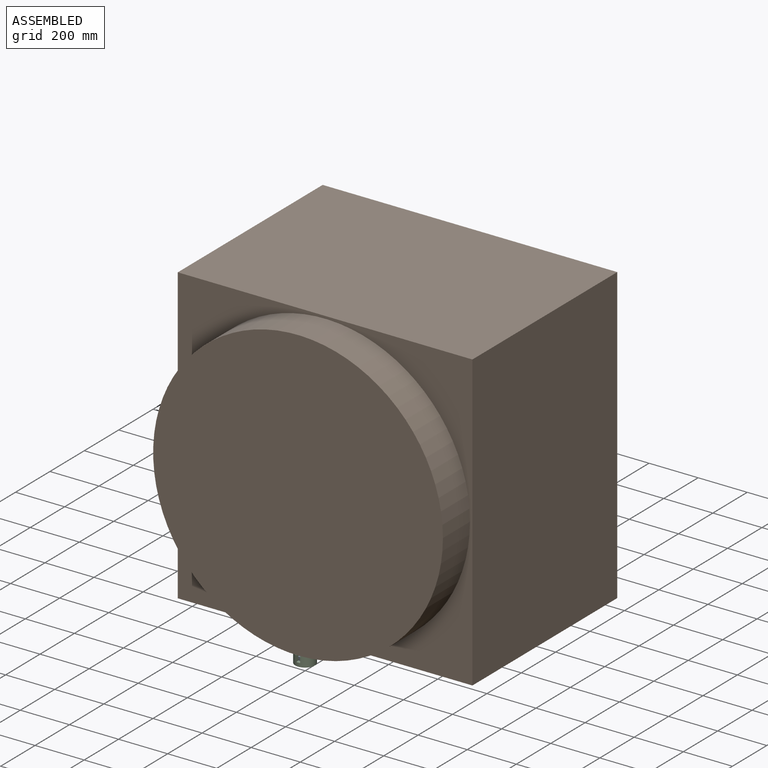
[diagram: assembled view]
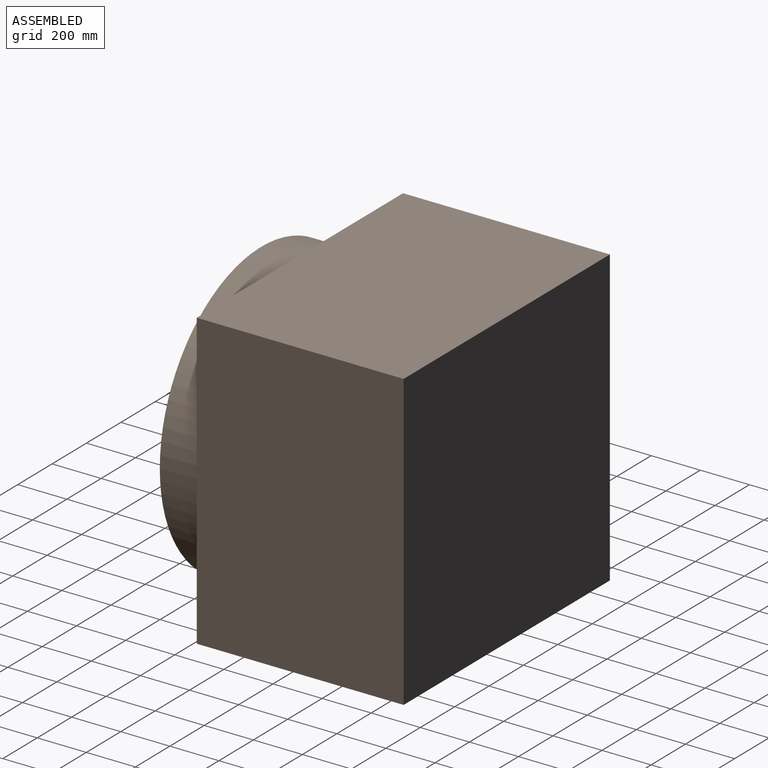
[diagram: assembled view, second angle]
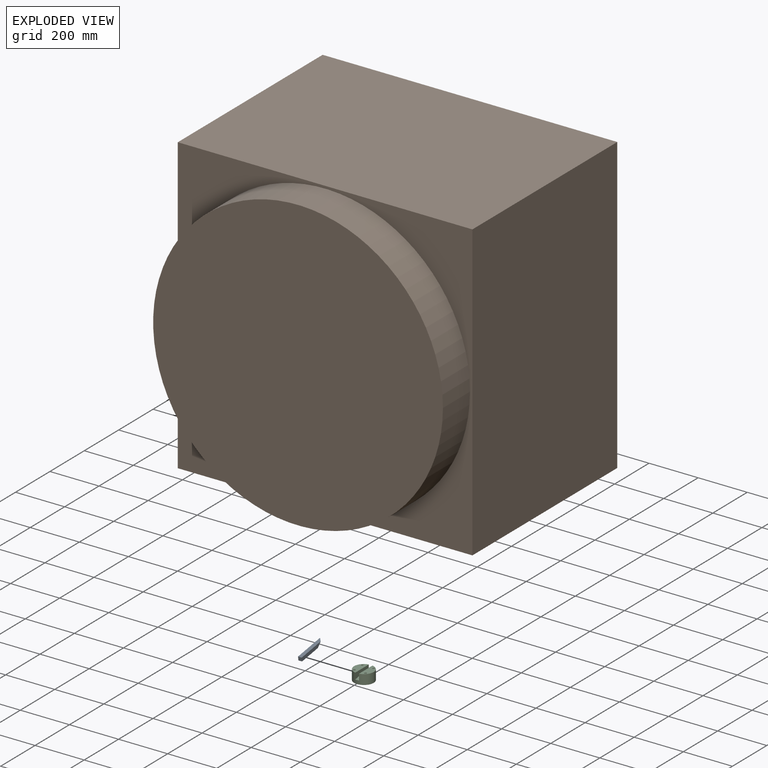
[diagram: exploded view]
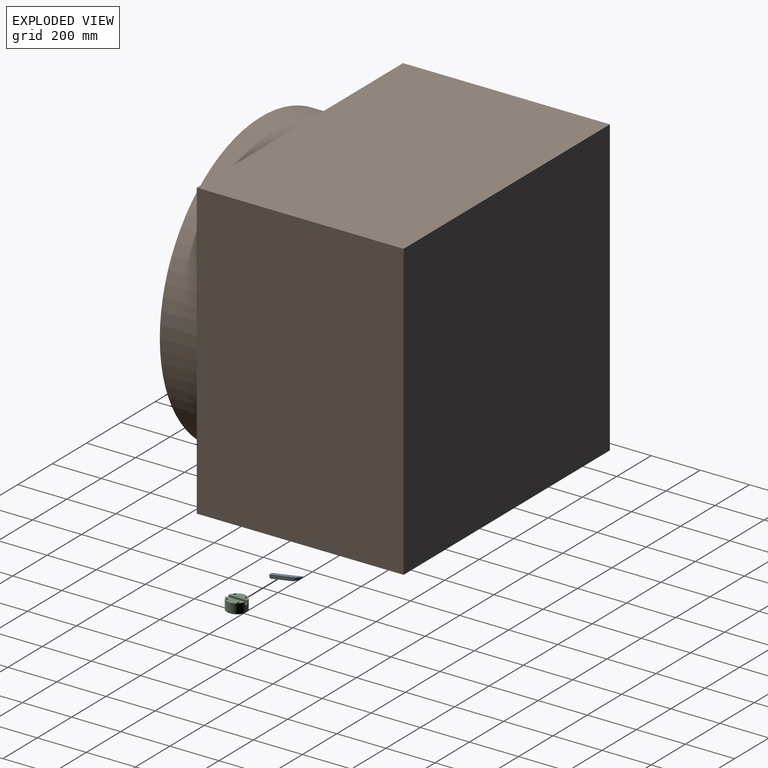
[diagram: exploded view, second angle]
ASSEMBLY  parts=3 mates=3
PART A: 7 faces, bbox 21.2x130x21.2 mm
  f0: plane 0.01x0.01mm, normal (0,-1,0), area 0mm2, adj f1,f2,f6
  f1: plane 130x10.61mm, normal (-0.71,0,-0.71), area 1812.4mm2, adj f0,f2,f4,f5,f6
  f2: plane 130x10.61mm, normal (0.71,0,-0.71), area 1812.4mm2, adj f0,f1,f3,f5,f6
  f3: plane 111.64x10.61mm, normal (0.71,0,0.71), area 1536.8mm2, adj f2,f4,f5,f6
  f4: plane 111.64x10.61mm, normal (-0.71,0,0.71), area 1536.8mm2, adj f1,f3,f5,f6
  f5: plane 21.21x21.21mm, normal (0,1,0), area 225mm2, adj f1,f2,f3,f4
  f6: plane 36.73x21.21mm, normal (0,-0.5,0.87), area 450mm2, adj f0,f1,f2,f3,f4
PART B: 8 faces, bbox 1200x1200x1000 mm
  f0: plane 1180x1180mm, normal (0,0,1), area 1093588.4mm2, adj f1
  f1: cylinder r=590mm len=1180mm, axis (0,0,1), area 583521.7mm2, adj f0,f2
  f2: plane 1200x1200mm, normal (0,0,1), area 346411.6mm2, adj f1,f3,f4,f5,f6
  f3: plane 1200x842.59mm, normal (1,0,0), area 1011111.1mm2, adj f2,f4,f5,f7
  f4: plane 1200x842.59mm, normal (0,1,0), area 1011111.1mm2, adj f2,f3,f6,f7
  f5: plane 1200x842.59mm, normal (0,-1,0), area 1011111.1mm2, adj f2,f3,f6,f7
  f6: plane 1200x842.59mm, normal (-1,0,0), area 1011111.1mm2, adj f2,f4,f5,f7
  f7: plane 1200x1200mm, normal (0,0,-1), area 1440000mm2, adj f3,f4,f5,f6
PART C: 13 faces, bbox 80x80x40 mm
  f0: plane 15x0.71mm, normal (0,0,1), area 7.1mm2, adj f6,f11
  f1: plane 78.58x32.5mm, normal (0,0,1), area 1803.3mm2, adj f3,f4,f6,f10
  f2: cylinder r=4.25mm len=40mm, axis (0,0,-1), area 1068.1mm2, adj f7,f8
  f3: cylinder r=4.25mm len=40mm, axis (0,0,-1), area 1068.1mm2, adj f1,f8
  f4: cylinder r=4.25mm len=40mm, axis (0,0,-1), area 1068.1mm2, adj f1,f8
  f5: cylinder r=4.25mm len=40mm, axis (0,0,-1), area 1068.1mm2, adj f7,f8
  f6: cylinder r=40mm len=80mm, axis (0,0,-1), area 9487.2mm2, adj f0,f1,f7,f8,f9,f10,f12
  f7: plane 78.58x32.5mm, normal (0,0,1), area 1803.3mm2, adj f2,f5,f6,f9
  f8: plane 80x80mm, normal (0,0,-1), area 4799.6mm2, adj f2,f3,f4,f5,f6
  f9: plane 78.58x25mm, normal (1,0,0), area 1473.4mm2, adj f6,f7,f11
  f10: plane 78.58x25mm, normal (-1,0,0), area 1473.4mm2, adj f1,f6,f11
  f11: plane 78.58x15mm, normal (0,-0.16,0.99), area 1193.5mm2, adj f0,f9,f10,f12
  f12: plane 15x0.71mm, normal (0,0,1), area 7.1mm2, adj f6,f11
PLACE A rot(axis=(-0.92,0.03,-0.38),171.7deg) t=(-0.4,-29.24,3.83)mm
PLACE B rot(axis=(1,0,0),90deg) t=(12.36,940.89,621.56)mm
PLACE C t=(-0.4,0,-20.36)mm fixed
MATE parallel B.f5 <-> C.f1  axis (0,0,-1) through (12.36,519.59,21.56)mm
MATE planar A.f1 <-> C.f9  axis (-1,0,0) through (-7.9,30.51,13.53)mm
MATE planar A.f4 <-> C.f11  axis (0,0.16,-0.99) through (-0.62,22.67,4.49)mm
